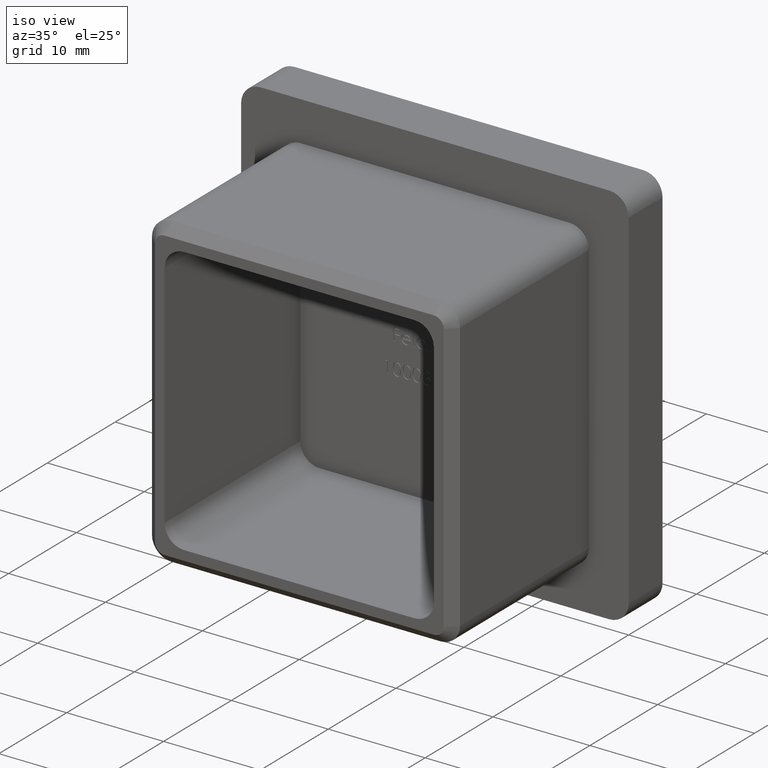
[diagram: clean part render]
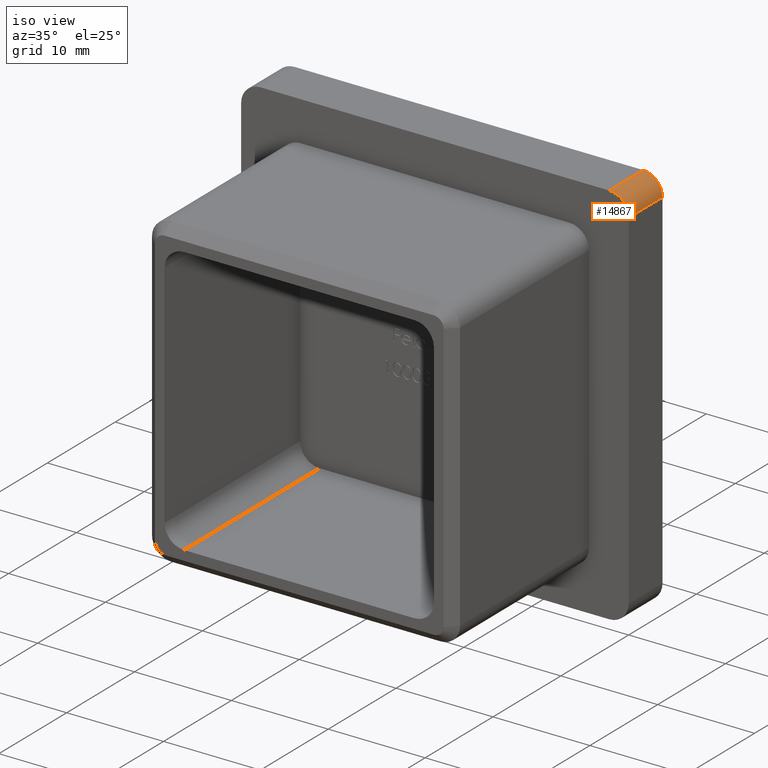
[diagram: same view with one face highlighted and labeled with its STEP entity id]
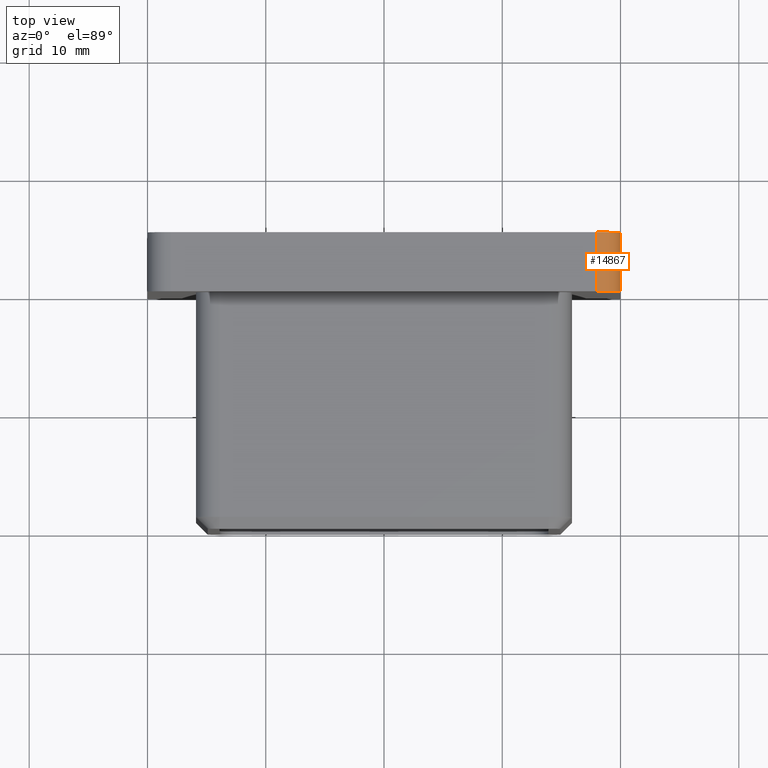
[diagram: same view with one face highlighted and labeled with its STEP entity id]
A machine part, iso view. The second image highlights one B-rep face of the part: STEP entity #14867.
A second angle (top view) of the same face is appended — the face is thin or edge-on in the first view.
In plain terms, the highlighted cylindrical surface (edge-blend (fillet) strip) has radius 2 mm, axis along (0, -1, 0).
Its self-contained STEP definition (entity closure, byte-faithful):
#564 = FACE_OUTER_BOUND ( 'NONE', #6228, .T. ) ;
#794 = DIRECTION ( 'NONE',  ( 0.0000000000000000000, 1.000000000000000000, 0.0000000000000000000 ) ) ;
#2086 = EDGE_CURVE ( 'NONE', #6205, #9107, #9970, .T. ) ;
#2702 = CARTESIAN_POINT ( 'NONE',  ( 18.00000000000001100, 0.0000000000000000000, 18.00000000000000700 ) ) ;
#2917 = LINE ( 'NONE', #5671, #5097 ) ;
#4357 = DIRECTION ( 'NONE',  ( 0.0000000000000000000, 0.0000000000000000000, 1.000000000000000000 ) ) ;
#4581 = VECTOR ( 'NONE', #7232, 1000.000000000000000 ) ;
#4687 = CARTESIAN_POINT ( 'NONE',  ( 18.00000000000001100, 5.000000000000000000, 18.00000000000000700 ) ) ;
#4743 = DIRECTION ( 'NONE',  ( 0.0000000000000000000, 0.0000000000000000000, -1.000000000000000000 ) ) ;
#4829 = DIRECTION ( 'NONE',  ( 0.0000000000000000000, 0.0000000000000000000, 1.000000000000000000 ) ) ;
#5097 = VECTOR ( 'NONE', #7944, 1000.000000000000000 ) ;
#5139 = VERTEX_POINT ( 'NONE', #13332 ) ;
#5671 = CARTESIAN_POINT ( 'NONE',  ( 20.00000000000000700, 5.000000000000000000, 18.00000000000000700 ) ) ;
#6110 = ORIENTED_EDGE ( 'NONE', *, *, #2086, .F. ) ;
#6166 = AXIS2_PLACEMENT_3D ( 'NONE', #2702, #11770, #4829 ) ;
#6187 = CYLINDRICAL_SURFACE ( 'NONE', #8916, 1.999999999999998200 ) ;
#6205 = VERTEX_POINT ( 'NONE', #14097 ) ;
#6228 = EDGE_LOOP ( 'NONE', ( #8344, #7511, #6110, #13079 ) ) ;
#6300 = CARTESIAN_POINT ( 'NONE',  ( 18.00000000000001400, 0.0000000000000000000, 20.00000000000000000 ) ) ;
#7232 = DIRECTION ( 'NONE',  ( -0.0000000000000000000, 1.000000000000000000, -0.0000000000000000000 ) ) ;
#7511 = ORIENTED_EDGE ( 'NONE', *, *, #8429, .F. ) ;
#7880 = CARTESIAN_POINT ( 'NONE',  ( 18.00000000000001100, 5.000000000000000000, 18.00000000000000700 ) ) ;
#7944 = DIRECTION ( 'NONE',  ( 0.0000000000000000000, -1.000000000000000000, 0.0000000000000000000 ) ) ;
#8127 = EDGE_CURVE ( 'NONE', #5139, #14116, #11102, .T. ) ;
#8212 = DIRECTION ( 'NONE',  ( 0.0000000000000000000, -1.000000000000000000, 0.0000000000000000000 ) ) ;
#8344 = ORIENTED_EDGE ( 'NONE', *, *, #8127, .F. ) ;
#8429 = EDGE_CURVE ( 'NONE', #9107, #5139, #12198, .T. ) ;
#8916 = AXIS2_PLACEMENT_3D ( 'NONE', #4687, #8212, #4743 ) ;
#8987 = AXIS2_PLACEMENT_3D ( 'NONE', #7880, #794, #4357 ) ;
#9107 = VERTEX_POINT ( 'NONE', #6300 ) ;
#9504 = CARTESIAN_POINT ( 'NONE',  ( 18.00000000000001400, 5.000000000000000000, 20.00000000000000000 ) ) ;
#9970 = CIRCLE ( 'NONE', #6166, 1.999999999999998200 ) ;
#11102 = CIRCLE ( 'NONE', #8987, 1.999999999999998200 ) ;
#11770 = DIRECTION ( 'NONE',  ( -0.0000000000000000000, -1.000000000000000000, -0.0000000000000000000 ) ) ;
#12198 = LINE ( 'NONE', #9504, #4581 ) ;
#13079 = ORIENTED_EDGE ( 'NONE', *, *, #15031, .F. ) ;
#13332 = CARTESIAN_POINT ( 'NONE',  ( 18.00000000000001400, 5.000000000000000000, 20.00000000000000000 ) ) ;
#13572 = CARTESIAN_POINT ( 'NONE',  ( 20.00000000000000700, 5.000000000000000000, 18.00000000000000700 ) ) ;
#14097 = CARTESIAN_POINT ( 'NONE',  ( 20.00000000000000700, 0.0000000000000000000, 18.00000000000000700 ) ) ;
#14116 = VERTEX_POINT ( 'NONE', #13572 ) ;
#14867 = ADVANCED_FACE ( 'NONE', ( #564 ), #6187, .T. ) ;
#15031 = EDGE_CURVE ( 'NONE', #14116, #6205, #2917, .T. ) ;